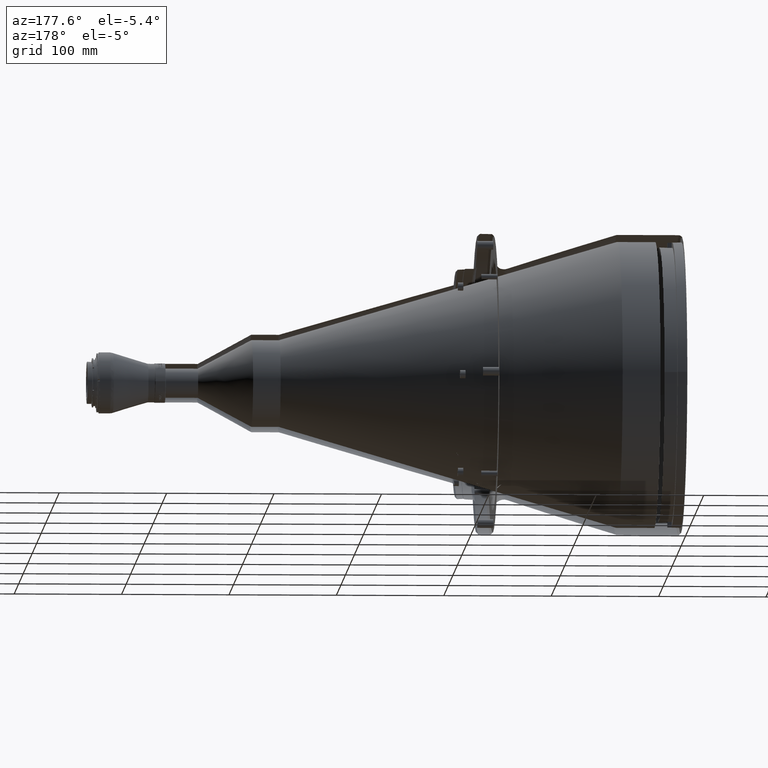
[diagram: clean part render]
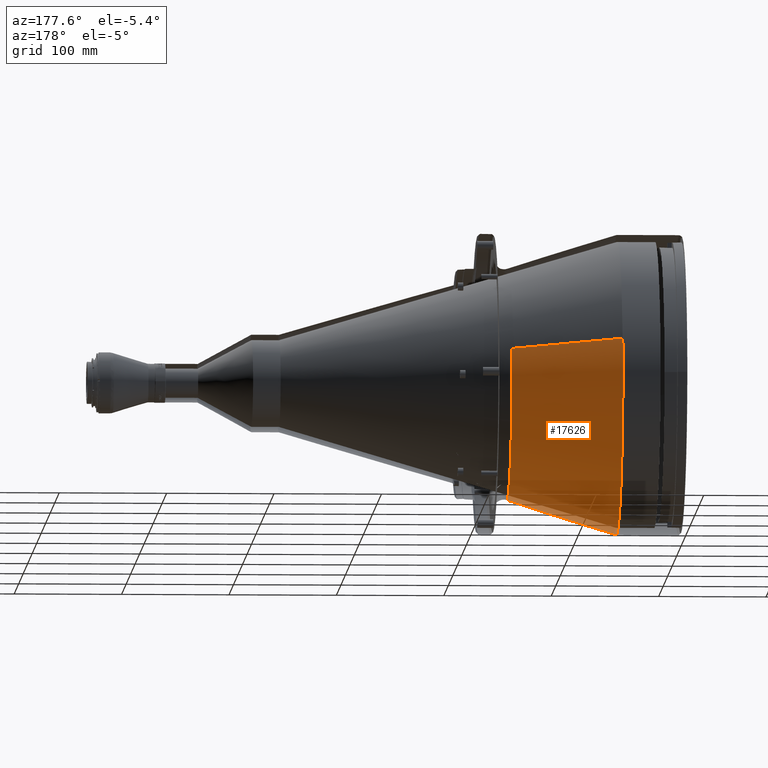
[diagram: same view with one face highlighted and labeled with its STEP entity id]
A machine part, auxiliary view. The second image highlights one B-rep face of the part: STEP entity #17626.
In plain terms, the highlighted conical surface has half-angle 17.382 deg.
Its self-contained STEP definition (entity closure, byte-faithful):
#37 = CARTESIAN_POINT ( 'NONE',  ( 59.99999999410525930, 133.8161731033737283, -42.02117620234508166 ) ) ;
#315 = CARTESIAN_POINT ( 'NONE',  ( 59.99999999410526641, 140.0000000001219291, -8.517478114140072165 ) ) ;
#369 = B_SPLINE_CURVE_WITH_KNOTS ( 'NONE', 3,
 ( #13071, #16678, #29488, #28924 ),
 .UNSPECIFIED., .F., .F.,
 ( 4, 4 ),
 ( 0.8591068500855926215, 1.000000000000000000 ),
 .UNSPECIFIED. ) ;
#821 = DIRECTION ( 'NONE',  ( -0.9543322002053004072, 0.2914609476793955101, 0.06557871323180265721 ) ) ;
#876 = CARTESIAN_POINT ( 'NONE',  ( 59.99999999410525220, -88.21304683518077638, -109.0458885129233124 ) ) ;
#880 = CARTESIAN_POINT ( 'NONE',  ( 162.0125252981370068, 108.0656442538920032, 4.999937153249249741E-10 ) ) ;
#1666 = CARTESIAN_POINT ( 'NONE',  ( 162.0125252979769925, -97.64074696450818180, -46.70535456964508825 ) ) ;
#1734 = EDGE_CURVE ( 'NONE', #39900, #41451, #54282, .T. ) ;
#2998 = CARTESIAN_POINT ( 'NONE',  ( 162.0125252981090114, -105.4298968327159969, -23.72172678854300187 ) ) ;
#4498 = CARTESIAN_POINT ( 'NONE',  ( 59.99999999410523799, 48.61304414123190298, -131.5648865495863902 ) ) ;
#4500 = CARTESIAN_POINT ( 'NONE',  ( 162.0125252979654533, 65.91893984835355980, -85.92381780851582107 ) ) ;
#4771 = CARTESIAN_POINT ( 'NONE',  ( 59.99999999418438534, 140.0000000009208918, 1.999955260122350112E-09 ) ) ;
#5838 = CARTESIAN_POINT ( 'NONE',  ( 162.0125252979396748, -30.03665342740890765, -103.9851194355137807 ) ) ;
#8679 = CARTESIAN_POINT ( 'NONE',  ( 59.99999999410525930, 56.54168775200723474, -128.3572552668345850 ) ) ;
#8964 = CARTESIAN_POINT ( 'NONE',  ( 59.99999999410524509, -74.34284865411115106, -118.9356476734666330 ) ) ;
#9236 = CARTESIAN_POINT ( 'NONE',  ( 59.99999999410525930, 71.68535554220865436, -120.5560335871415703 ) ) ;
#9239 = CARTESIAN_POINT ( 'NONE',  ( 162.0125252980437836, 107.3690436139676905, -14.14558486241598345 ) ) ;
#10383 = EDGE_CURVE ( 'NONE', #41451, #44283, #30064, .T. ) ;
#10561 = ORIENTED_EDGE ( 'NONE', *, *, #15993, .F. ) ;
#12442 = AXIS2_PLACEMENT_3D ( 'NONE', #14219, #26196, #43151 ) ;
#12584 = CARTESIAN_POINT ( 'NONE',  ( 162.0125252979468939, 34.82044270940893682, -102.5463108405499923 ) ) ;
#13071 = CARTESIAN_POINT ( 'NONE',  ( 162.0125252981717949, 105.4298968328742916, 23.72172678888931685 ) ) ;
#13129 = CARTESIAN_POINT ( 'NONE',  ( 59.99999999399350514, -136.5853658544282041, -30.73170731879745077 ) ) ;
#13416 = CARTESIAN_POINT ( 'NONE',  ( 59.99999999410523088, -1.556271196585246264, -140.2502244328283041 ) ) ;
#13794 = CARTESIAN_POINT ( 'NONE',  ( 59.99999999418983521, 136.5853658541696518, 30.73170731910184017 ) ) ;
#14219 = CARTESIAN_POINT ( 'NONE',  ( 69.38515232618340178, 1.203481758693669948E-10, 2.060307480178379984E-10 ) ) ;
#14477 = CARTESIAN_POINT ( 'NONE',  ( 162.0125252980445509, 2.360226212017311603E-12, -108.0656442532352912 ) ) ;
#14486 = EDGE_LOOP ( 'NONE', ( #33293, #53609, #34527, #14538, #36399, #35080, #10561 ) ) ;
#14538 = ORIENTED_EDGE ( 'NONE', *, *, #47613, .F. ) ;
#15993 = EDGE_CURVE ( 'NONE', #38952, #24415, #44170, .T. ) ;
#16678 = CARTESIAN_POINT ( 'NONE',  ( 162.0125252980934647, 107.1798837446595769, 15.94400718043112519 ) ) ;
#17025 = CARTESIAN_POINT ( 'NONE',  ( 59.99999999410525220, 136.1286134482677141, -33.78680266186963621 ) ) ;
#17294 = CARTESIAN_POINT ( 'NONE',  ( 59.99999999410525930, 23.92579661218042730, -138.2031247474598672 ) ) ;
#17574 = CARTESIAN_POINT ( 'NONE',  ( 59.99999999410526641, -18.54726308705833659, -139.0271429091453399 ) ) ;
#17626 = ADVANCED_FACE ( 'NONE', ( #47353 ), #20413, .F. ) ;
#17859 = CARTESIAN_POINT ( 'NONE',  ( 59.99999999410525220, 78.90010007615128984, -115.9625872488549163 ) ) ;
#17862 = CARTESIAN_POINT ( 'NONE',  ( 162.0125252979407549, 14.14558486292381367, -107.3690436129589614 ) ) ;
#17961 = CARTESIAN_POINT ( 'NONE',  ( 59.99999999418438534, 140.0000000009208918, 1.999955260122350112E-09 ) ) ;
#18466 = CARTESIAN_POINT ( 'NONE',  ( 59.99999999418983521, 136.5853658541696518, 30.73170731910184017 ) ) ;
#19458 = CARTESIAN_POINT ( 'NONE',  ( 162.0125252979388506, -24.13286487951054227, -105.5116602363937091 ) ) ;
#19730 = CARTESIAN_POINT ( 'NONE',  ( 162.0125252979419486, -41.50430332886043772, -99.96248505480086521 ) ) ;
#20413 = CONICAL_SURFACE ( 'NONE', #12442, 137.0620392716569995, 0.3033799178420056863 ) ;
#21193 = CARTESIAN_POINT ( 'NONE',  ( 59.99999999410525220, -134.7156755353101687, -39.04144206603920964 ) ) ;
#21400 = EDGE_CURVE ( 'NONE', #24415, #37907, #36892, .T. ) ;
#21473 = CARTESIAN_POINT ( 'NONE',  ( 59.99999999410526641, -94.69550604783071890, -103.4664610773252349 ) ) ;
#21738 = DIRECTION ( 'NONE',  ( -0.9543322002058610698, -0.2914609476777517139, -0.06557871323094892346 ) ) ;
#21742 = CARTESIAN_POINT ( 'NONE',  ( 59.99999999410524509, -51.52050530930840466, -130.4537656266871295 ) ) ;
#22828 = CARTESIAN_POINT ( 'NONE',  ( 162.0125252979572679, -76.67677737495509405, -76.39226024008748084 ) ) ;
#22954 = EDGE_CURVE ( 'NONE', #42064, #37907, #38931, .T. ) ;
#23372 = CARTESIAN_POINT ( 'NONE',  ( 162.0125252979879917, -104.0960618086161276, -29.64988244897220682 ) ) ;
#24415 = VERTEX_POINT ( 'NONE', #28897 ) ;
#25652 = CARTESIAN_POINT ( 'NONE',  ( 59.99999999410525930, 109.9984114659319090, -87.02239314359484013 ) ) ;
#26196 = DIRECTION ( 'NONE',  ( -1.000000000000000000, 8.612159453605999384E-13, 4.473061187110680058E-13 ) ) ;
#28897 = CARTESIAN_POINT ( 'NONE',  ( 59.99999999418438534, 140.0000000009208918, 1.999955260122350112E-09 ) ) ;
#28924 = CARTESIAN_POINT ( 'NONE',  ( 162.0125252981370068, 108.0656442538920032, 4.999937153249249741E-10 ) ) ;
#29488 = CARTESIAN_POINT ( 'NONE',  ( 162.0125252980766106, 108.0656442536867274, 7.972162599144435369 ) ) ;
#29545 = CARTESIAN_POINT ( 'NONE',  ( 59.99999999410525220, -121.3282033719865325, -70.37055136954120371 ) ) ;
#29547 = CARTESIAN_POINT ( 'NONE',  ( 162.0125252980282085, 104.6093427883677123, -28.01953780906286795 ) ) ;
#30064 = B_SPLINE_CURVE_WITH_KNOTS ( 'NONE', 3,
 ( #14477, #52607, #35887, #19458, #5838, #19730, #52867, #48977, #31709, #44500, #22828, #48431, #44772, #31443, #1666, #48696, #23372, #31983 ),
 .UNSPECIFIED., .F., .F.,
 ( 4, 2, 2, 2, 2, 2, 2, 2, 4 ),
 ( 0.5378926982903259324, 0.5956561110040351492, 0.6534195237177444771, 0.7111829364314536939, 0.7689463491451629107, 0.8267097618588722385, 0.8844731745725814553, 0.9422365872862907832, 1.000000000000000000 ),
 .UNSPECIFIED. ) ;
#30107 = CARTESIAN_POINT ( 'NONE',  ( 59.99999999410525930, -26.98663933040509733, -137.6381804992832940 ) ) ;
#30388 = CARTESIAN_POINT ( 'NONE',  ( 59.99999999410525220, 6.995030692064074351, -140.0843209610228541 ) ) ;
#30657 = CARTESIAN_POINT ( 'NONE',  ( 162.0125252979703419, 71.41266854134893549, -81.41523118762908950 ) ) ;
#30924 = CARTESIAN_POINT ( 'NONE',  ( 69.38515232605477934, -133.7190627035720638, -30.08678910982079202 ) ) ;
#31443 = CARTESIAN_POINT ( 'NONE',  ( 162.0125252979734114, -94.85548528229098508, -52.13005395270999998 ) ) ;
#31709 = CARTESIAN_POINT ( 'NONE',  ( 162.0125252979494519, -62.76323312597581605, -88.18096268892708167 ) ) ;
#31983 = CARTESIAN_POINT ( 'NONE',  ( 162.0125252981090114, -105.4298968327159969, -23.72172678854300187 ) ) ;
#33147 = VECTOR ( 'NONE', #821, 1000.000000000000000 ) ;
#33293 = ORIENTED_EDGE ( 'NONE', *, *, #36206, .F. ) ;
#33704 = CARTESIAN_POINT ( 'NONE',  ( 59.99999999410525220, -66.95536581507384710, -123.2457967724772914 ) ) ;
#33706 = CARTESIAN_POINT ( 'NONE',  ( 162.0125252979568700, 54.15717047010951291, -93.78278085115807983 ) ) ;
#34268 = CARTESIAN_POINT ( 'NONE',  ( 162.0125252979445349, 28.01953780958689677, -104.6093427874329080 ) ) ;
#34527 = ORIENTED_EDGE ( 'NONE', *, *, #1734, .F. ) ;
#34547 = CARTESIAN_POINT ( 'NONE',  ( 162.0125252979811137, 81.41523118833295314, -71.41266854069854730 ) ) ;
#34648 = CARTESIAN_POINT ( 'NONE',  ( 59.99999999410525220, 138.8524894091324597, 20.65560262671116121 ) ) ;
#34826 = CARTESIAN_POINT ( 'NONE',  ( 59.99999999410524509, 98.63743354435317201, -99.71561631586662600 ) ) ;
#34828 = CARTESIAN_POINT ( 'NONE',  ( 162.0125252979395327, 7.072879876909586194, -108.0656442525608583 ) ) ;
#34930 = CARTESIAN_POINT ( 'NONE',  ( 59.99999999410525220, 139.9999999998526619, 10.32800731151934492 ) ) ;
#35080 = ORIENTED_EDGE ( 'NONE', *, *, #21400, .F. ) ;
#35887 = CARTESIAN_POINT ( 'NONE',  ( 162.0125252979382822, -12.15263721765766114, -107.5519363925367173 ) ) ;
#35945 = CARTESIAN_POINT ( 'NONE',  ( 162.0125252981717949, 105.4298968328742916, 23.72172678888931685 ) ) ;
#36206 = EDGE_CURVE ( 'NONE', #44283, #38952, #52353, .T. ) ;
#36399 = ORIENTED_EDGE ( 'NONE', *, *, #22954, .T. ) ;
#36892 = B_SPLINE_CURVE_WITH_KNOTS ( 'NONE', 3,
 ( #17961, #34930, #34648, #13794 ),
 .UNSPECIFIED., .F., .F.,
 ( 4, 4 ),
 ( 0.4817453681160879242, 0.5182546318866185775 ),
 .UNSPECIFIED. ) ;
#37876 = CARTESIAN_POINT ( 'NONE',  ( 59.99999999410526641, -125.3917881443729385, -62.84462506440078045 ) ) ;
#37907 = VERTEX_POINT ( 'NONE', #18466 ) ;
#38157 = CARTESIAN_POINT ( 'NONE',  ( 59.99999999410525930, 32.30494799731312128, -136.4878667441837763 ) ) ;
#38708 = CARTESIAN_POINT ( 'NONE',  ( 59.99999999410524509, -132.0855860304262990, -47.17992577918098362 ) ) ;
#38931 = LINE ( 'NONE', #46750, #33147 ) ;
#38952 = VERTEX_POINT ( 'NONE', #54876 ) ;
#39900 = VERTEX_POINT ( 'NONE', #43250 ) ;
#41321 = CARTESIAN_POINT ( 'NONE',  ( 162.0125252980445509, 2.360226212017311603E-12, -108.0656442532352912 ) ) ;
#41451 = VERTEX_POINT ( 'NONE', #41321 ) ;
#42047 = CARTESIAN_POINT ( 'NONE',  ( 59.99999999410526641, -111.9023576895371406, -84.56009565420193042 ) ) ;
#42064 = VERTEX_POINT ( 'NONE', #35945 ) ;
#42325 = CARTESIAN_POINT ( 'NONE',  ( 162.0125252980064658, 97.13296294539453868, -47.88942061722109145 ) ) ;
#42889 = CARTESIAN_POINT ( 'NONE',  ( 59.99999999410525220, -106.5402708387053963, -91.22345160724184154 ) ) ;
#43151 = DIRECTION ( 'NONE',  ( 9.384023328873782265E-13, 0.9756097560949110736, 0.2195121951337290211 ) ) ;
#43161 = CARTESIAN_POINT ( 'NONE',  ( 162.0125252980207904, 102.5463108414486442, -34.82044270887329418 ) ) ;
#43250 = CARTESIAN_POINT ( 'NONE',  ( 162.0125252981370068, 108.0656442538920032, 4.999937153249249741E-10 ) ) ;
#44170 = B_SPLINE_CURVE_WITH_KNOTS ( 'NONE', 3,
 ( #13129, #21193, #38708, #37876, #29545, #42047, #42889, #21473, #876, #8964, #33704, #21742, #47362, #30107, #17574, #13416, #30388, #17294, #38157, #4498, #8679, #9236, #17859, #46801, #34826, #25652, #46245, #54866, #50705, #37, #17025, #47077, #315, #4771 ),
 .UNSPECIFIED., .F., .F.,
 ( 4, 2, 2, 2, 2, 2, 2, 2, 2, 2, 2, 2, 2, 2, 2, 2, 4 ),
 ( 0.000000000000000000, 0.03010908550725550914, 0.06021817101451101828, 0.09032725652176652742, 0.1204363420290220366, 0.1505454275362775318, 0.1806545130435330271, 0.2107635985507884946, 0.2408726840580440176, 0.2709817695652995129, 0.3010908550725550081, 0.3311999405798105589, 0.3613090260870660542, 0.3914181115943215494, 0.4215271971015770447, 0.4516362826088325400, 0.4817453681160879242 ),
 .UNSPECIFIED. ) ;
#44283 = VERTEX_POINT ( 'NONE', #2998 ) ;
#44500 = CARTESIAN_POINT ( 'NONE',  ( 162.0125252979544541, -72.25291242436888695, -80.58921925037398637 ) ) ;
#44772 = CARTESIAN_POINT ( 'NONE',  ( 162.0125252979665902, -88.41367493228221974, -62.43498777286102808 ) ) ;
#46245 = CARTESIAN_POINT ( 'NONE',  ( 59.99999999410524509, 115.0980095532121652, -80.15607045230065353 ) ) ;
#46750 = CARTESIAN_POINT ( 'NONE',  ( 69.38515232631202423, 133.7190627038127673, 30.08678911023283220 ) ) ;
#46801 = CARTESIAN_POINT ( 'NONE',  ( 59.99999999410523799, 92.37626350375914797, -105.5422824016777810 ) ) ;
#46803 = CARTESIAN_POINT ( 'NONE',  ( 162.0125252980445509, 2.360226212017311603E-12, -108.0656442532352912 ) ) ;
#47077 = CARTESIAN_POINT ( 'NONE',  ( 59.99999999410525930, 139.2205554447988618, -17.03479894512625492 ) ) ;
#47353 = FACE_OUTER_BOUND ( 'NONE', #14486, .T. ) ;
#47362 = CARTESIAN_POINT ( 'NONE',  ( 59.99999999410525220, -43.47341266527680403, -133.3514522783368079 ) ) ;
#47613 = EDGE_CURVE ( 'NONE', #42064, #39900, #369, .T. ) ;
#47643 = CARTESIAN_POINT ( 'NONE',  ( 162.0125252979531751, 47.88942061778657688, -97.13296294456543478 ) ) ;
#48098 = VECTOR ( 'NONE', #21738, 1000.000000000000227 ) ;
#48431 = CARTESIAN_POINT ( 'NONE',  ( 162.0125252979633785, -84.75721307583054909, -67.31508333825365753 ) ) ;
#48696 = CARTESIAN_POINT ( 'NONE',  ( 162.0125252979842685, -102.2610663599220544, -35.46519308025627737 ) ) ;
#48977 = CARTESIAN_POINT ( 'NONE',  ( 162.0125252979472066, -57.69754666330214832, -91.57564480908702365 ) ) ;
#50705 = CARTESIAN_POINT ( 'NONE',  ( 59.99999999410524509, 127.7350041102145752, -57.93372211782752856 ) ) ;
#50707 = CARTESIAN_POINT ( 'NONE',  ( 162.0125252979997015, 93.78278085195385927, -54.15717046952576652 ) ) ;
#50975 = CARTESIAN_POINT ( 'NONE',  ( 162.0125252980517701, 108.0656442536073030, -7.072879876406284794 ) ) ;
#51262 = CARTESIAN_POINT ( 'NONE',  ( 162.0125252979869686, 85.92381780924895907, -65.91893984772740112 ) ) ;
#52353 = LINE ( 'NONE', #30924, #48098 ) ;
#52607 = CARTESIAN_POINT ( 'NONE',  ( 162.0125252979383959, -6.076359552047426504, -108.0656442525619951 ) ) ;
#52867 = CARTESIAN_POINT ( 'NONE',  ( 162.0125252979435118, -47.06801014168684816, -97.46644568492770588 ) ) ;
#53609 = ORIENTED_EDGE ( 'NONE', *, *, #10383, .F. ) ;
#54282 = B_SPLINE_CURVE_WITH_KNOTS ( 'NONE', 3,
 ( #880, #50975, #9239, #29547, #43161, #42325, #50707, #51262, #34547, #30657, #4500, #33706, #47643, #12584, #34268, #17862, #34828, #46803 ),
 .UNSPECIFIED., .F., .F.,
 ( 4, 2, 2, 2, 2, 2, 2, 2, 4 ),
 ( 0.000000000000000000, 0.06723658728629074155, 0.1344731745725814831, 0.2017097618588722385, 0.2689463491451629662, 0.3361829364314536939, 0.4034195237177444771, 0.4706561110040352047, 0.5378926982903259324 ),
 .UNSPECIFIED. ) ;
#54866 = CARTESIAN_POINT ( 'NONE',  ( 59.99999999410526641, 123.9663877578256290, -65.61160064912000678 ) ) ;
#54876 = CARTESIAN_POINT ( 'NONE',  ( 59.99999999399350514, -136.5853658544282041, -30.73170731879745077 ) ) ;